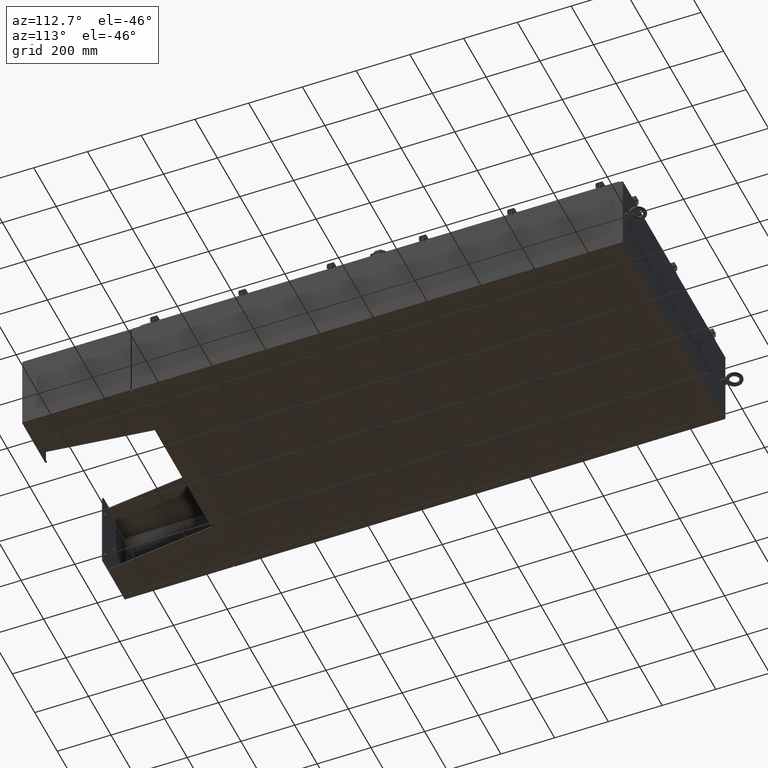
[diagram: clean part render]
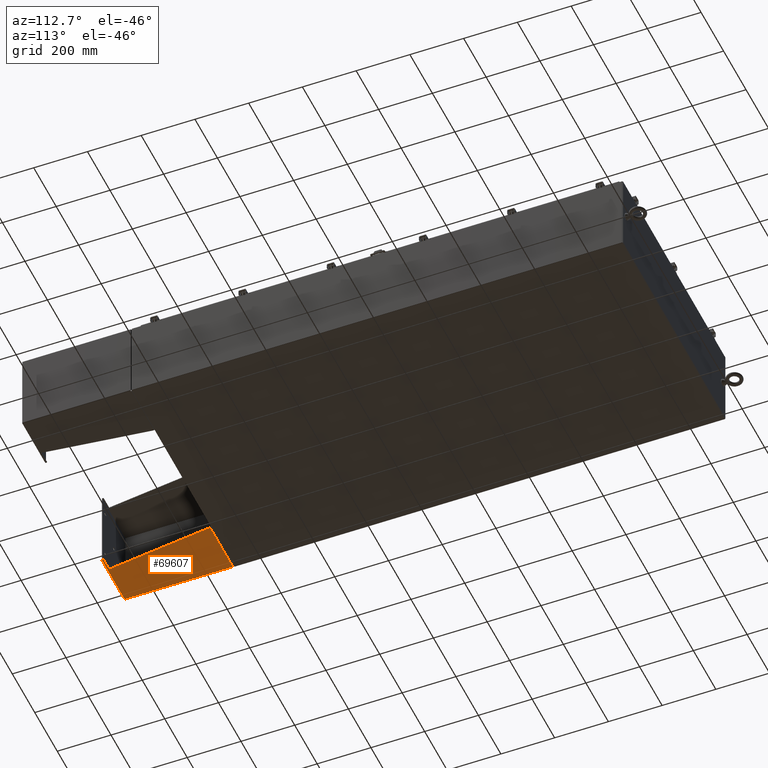
[diagram: same view with one face highlighted and labeled with its STEP entity id]
A machine part, auxiliary view. The second image highlights one B-rep face of the part: STEP entity #69607.
In plain terms, the highlighted planar face has unit normal (-0, -0, 1).
Its self-contained STEP definition (entity closure, byte-faithful):
#496 = VECTOR ( 'NONE', #41429, 39.37007874015748100 ) ;
#1062 = DIRECTION ( 'NONE',  ( 3.550958521948298200E-015, 0.0000000000000000000, 1.000000000000000000 ) ) ;
#1207 = CARTESIAN_POINT ( 'NONE',  ( 5.999999999999999100, -7.999999999999999100, 0.03900000000001453000 ) ) ;
#2371 = LINE ( 'NONE', #64871, #496 ) ;
#3974 = CARTESIAN_POINT ( 'NONE',  ( 6.000000000000029300, -7.999999999999999100, 8.001000000000015400 ) ) ;
#6072 = EDGE_CURVE ( 'NONE', #14261, #52300, #41990, .T. ) ;
#8094 = VERTEX_POINT ( 'NONE', #33138 ) ;
#12623 = CARTESIAN_POINT ( 'NONE',  ( 6.000000000000029300, -7.999999999999999100, 8.001000000000015400 ) ) ;
#13293 = VECTOR ( 'NONE', #42408, 39.37007874015748100 ) ;
#14261 = VERTEX_POINT ( 'NONE', #16163 ) ;
#15427 = CARTESIAN_POINT ( 'NONE',  ( 6.000000000000022200, -7.749999999999999100, 6.052216497445950700 ) ) ;
#16163 = CARTESIAN_POINT ( 'NONE',  ( 6.000000000000021300, -7.749999999999999100, 6.052216497445950700 ) ) ;
#16699 = AXIS2_PLACEMENT_3D ( 'NONE', #12623, #36241, #1062 ) ;
#18286 = FACE_OUTER_BOUND ( 'NONE', #74225, .T. ) ;
#19907 = ORIENTED_EDGE ( 'NONE', *, *, #72761, .F. ) ;
#21617 = DIRECTION ( 'NONE',  ( -3.550958521948298200E-015, 0.0000000000000000000, -1.000000000000000000 ) ) ;
#26990 = EDGE_CURVE ( 'NONE', #63696, #14261, #54413, .T. ) ;
#28382 = DIRECTION ( 'NONE',  ( 0.0000000000000000000, -1.000000000000000000, 0.0000000000000000000 ) ) ;
#30264 = ORIENTED_EDGE ( 'NONE', *, *, #50995, .T. ) ;
#30294 = LINE ( 'NONE', #3974, #44309 ) ;
#32416 = EDGE_CURVE ( 'NONE', #8094, #50000, #30294, .T. ) ;
#32899 = CARTESIAN_POINT ( 'NONE',  ( 6.000000000000029300, -7.749999999999999100, 8.001000000000031400 ) ) ;
#33138 = CARTESIAN_POINT ( 'NONE',  ( 6.000000000000029300, -7.999999999999999100, 8.001000000000015400 ) ) ;
#35570 = LINE ( 'NONE', #64014, #69145 ) ;
#36241 = DIRECTION ( 'NONE',  ( -1.000000000000000000, 0.0000000000000000000, 3.550958521948298200E-015 ) ) ;
#36374 = EDGE_CURVE ( 'NONE', #63696, #8094, #35570, .T. ) ;
#36711 = DIRECTION ( 'NONE',  ( -3.550958521948298200E-015, -0.0000000000000000000, -1.000000000000000000 ) ) ;
#37071 = CARTESIAN_POINT ( 'NONE',  ( 6.000000000000013300, 7.857000000000001100, 0.03900000000001453000 ) ) ;
#40089 = VECTOR ( 'NONE', #56845, 39.37007874015748100 ) ;
#41429 = DIRECTION ( 'NONE',  ( 0.0000000000000000000, 0.0000000000000000000, 1.000000000000000000 ) ) ;
#41990 = LINE ( 'NONE', #15427, #40089 ) ;
#42408 = DIRECTION ( 'NONE',  ( -0.0000000000000000000, -1.000000000000000000, 0.0000000000000000000 ) ) ;
#44309 = VECTOR ( 'NONE', #21617, 39.37007874015748100 ) ;
#46024 = ORIENTED_EDGE ( 'NONE', *, *, #32416, .T. ) ;
#48214 = VERTEX_POINT ( 'NONE', #37071 ) ;
#48550 = CARTESIAN_POINT ( 'NONE',  ( 6.000000000000013300, 7.857000000000001100, 8.001000000000013700 ) ) ;
#50000 = VERTEX_POINT ( 'NONE', #58291 ) ;
#50995 = EDGE_CURVE ( 'NONE', #48214, #52300, #2371, .T. ) ;
#52300 = VERTEX_POINT ( 'NONE', #48550 ) ;
#54413 = LINE ( 'NONE', #72382, #68341 ) ;
#56845 = DIRECTION ( 'NONE',  ( 4.399772607369798900E-016, 0.9922942345449394800, 0.1239038017531047700 ) ) ;
#58291 = CARTESIAN_POINT ( 'NONE',  ( 6.000000000000000900, -7.999999999999993800, 0.03899999999999890400 ) ) ;
#59216 = ORIENTED_EDGE ( 'NONE', *, *, #26990, .F. ) ;
#63696 = VERTEX_POINT ( 'NONE', #32899 ) ;
#64014 = CARTESIAN_POINT ( 'NONE',  ( 6.000000000000029300, -7.999999999999999100, 8.001000000000015400 ) ) ;
#64871 = CARTESIAN_POINT ( 'NONE',  ( 6.000000000000013300, 7.857000000000001100, 0.03900000000001561900 ) ) ;
#68341 = VECTOR ( 'NONE', #36711, 39.37007874015748100 ) ;
#69145 = VECTOR ( 'NONE', #28382, 39.37007874015748100 ) ;
#69607 = ADVANCED_FACE ( 'NONE', ( #18286 ), #71904, .F. ) ;
#71904 = PLANE ( 'NONE',  #16699 ) ;
#72382 = CARTESIAN_POINT ( 'NONE',  ( 6.000000000000029300, -7.749999999999999100, 8.001000000000015400 ) ) ;
#72761 = EDGE_CURVE ( 'NONE', #48214, #50000, #74469, .T. ) ;
#74011 = ORIENTED_EDGE ( 'NONE', *, *, #6072, .F. ) ;
#74225 = EDGE_LOOP ( 'NONE', ( #59216, #74486, #46024, #19907, #30264, #74011 ) ) ;
#74469 = LINE ( 'NONE', #1207, #13293 ) ;
#74486 = ORIENTED_EDGE ( 'NONE', *, *, #36374, .T. ) ;